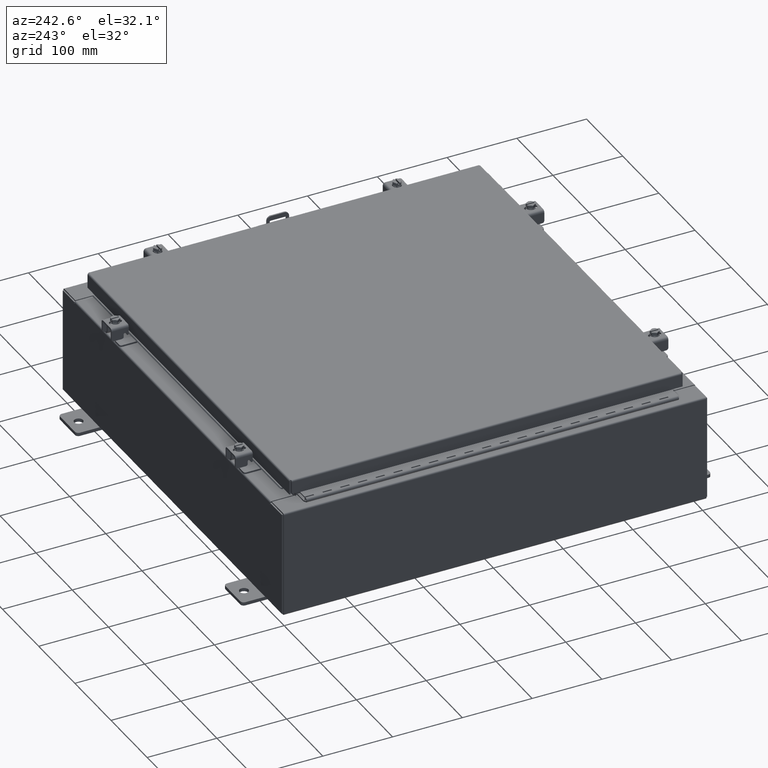
[diagram: clean part render]
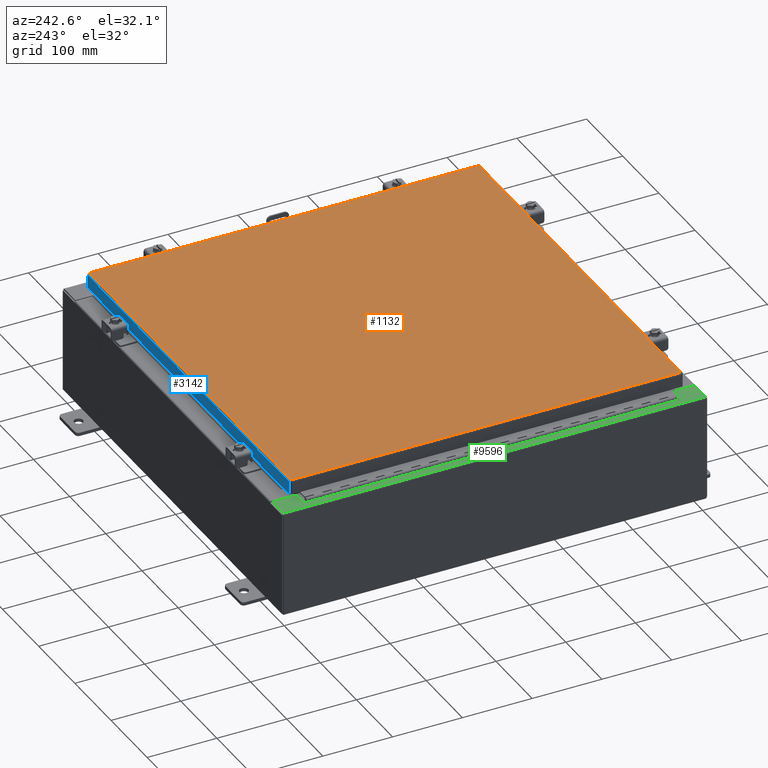
[diagram: same view with three faces highlighted in distinct colors, each labeled with its STEP entity id]
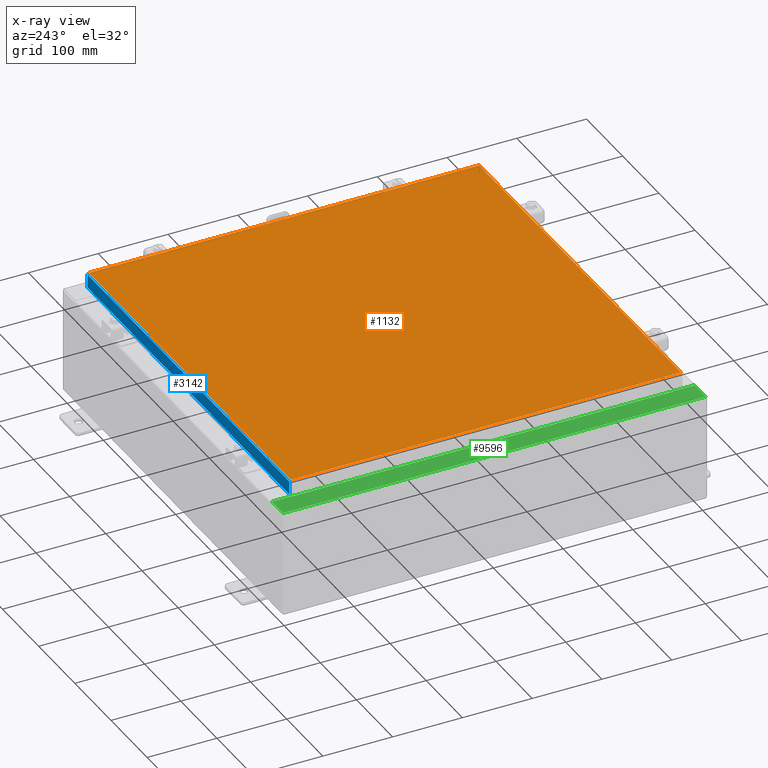
[diagram: x-ray of the same camera — body ghosted, the three highlighted faces saturated]
A machine part, auxiliary view with three faces highlighted in distinct colors.
The next image is the same camera in x-ray (body ghosted, the three faces saturated) — at least one of them is partly hidden behind the body in this view.
Their STEP definitions:

[orange] entity #1132 — the highlighted planar face has unit normal (0, 0, -1).
#3 = EDGE_CURVE ( 'NONE', #13325, #25488, #22379, .T. ) ;
#82 = ORIENTED_EDGE ( 'NONE', *, *, #29164, .T. ) ;
#209 = EDGE_LOOP ( 'NONE', ( #24850, #82, #24198, #31505 ) ) ;
#1132 = ADVANCED_FACE ( 'NONE', ( #6415 ), #1741, .F. ) ;
#1283 = EDGE_CURVE ( 'NONE', #8871, #13325, #8383, .T. ) ;
#1640 = DIRECTION ( 'NONE',  ( -1.000000000000000000, -0.0000000000000000000, -0.0000000000000000000 ) ) ;
#1741 = PLANE ( 'NONE',  #18687 ) ;
#3511 = CARTESIAN_POINT ( 'NONE',  ( 10.99029999999999800, 11.00629999999999600, 0.0000000000000000000 ) ) ;
#3762 = VECTOR ( 'NONE', #1640, 39.37007874015748100 ) ;
#4299 = DIRECTION ( 'NONE',  ( -1.000000000000000000, 0.0000000000000000000, -0.0000000000000000000 ) ) ;
#6415 = FACE_OUTER_BOUND ( 'NONE', #209, .T. ) ;
#7522 = VECTOR ( 'NONE', #13705, 39.37007874015748100 ) ;
#8383 = LINE ( 'NONE', #14921, #21101 ) ;
#8871 = VERTEX_POINT ( 'NONE', #24715 ) ;
#10486 = LINE ( 'NONE', #26974, #3762 ) ;
#11136 = CARTESIAN_POINT ( 'NONE',  ( 10.99029999999999600, -11.00630000000000100, 0.0000000000000000000 ) ) ;
#12912 = EDGE_CURVE ( 'NONE', #30241, #8871, #10486, .T. ) ;
#13325 = VERTEX_POINT ( 'NONE', #13341 ) ;
#13341 = CARTESIAN_POINT ( 'NONE',  ( -10.99030000000000000, -11.00630000000000100, 1.092739197465705300E-015 ) ) ;
#13705 = DIRECTION ( 'NONE',  ( 0.0000000000000000000, 1.000000000000000000, 0.0000000000000000000 ) ) ;
#14230 = LINE ( 'NONE', #11136, #7522 ) ;
#14270 = CARTESIAN_POINT ( 'NONE',  ( -10.99030000000000000, -11.00630000000000100, 1.092739197465705300E-015 ) ) ;
#14921 = CARTESIAN_POINT ( 'NONE',  ( -10.99030000000000500, 11.00629999999999600, -1.092739197465705300E-015 ) ) ;
#15589 = VECTOR ( 'NONE', #18727, 39.37007874015748100 ) ;
#18687 = AXIS2_PLACEMENT_3D ( 'NONE', #27073, #19507, #4299 ) ;
#18727 = DIRECTION ( 'NONE',  ( 1.000000000000000000, -0.0000000000000000000, -0.0000000000000000000 ) ) ;
#19507 = DIRECTION ( 'NONE',  ( 0.0000000000000000000, 0.0000000000000000000, -1.000000000000000000 ) ) ;
#21101 = VECTOR ( 'NONE', #27615, 39.37007874015748100 ) ;
#22379 = LINE ( 'NONE', #14270, #15589 ) ;
#24198 = ORIENTED_EDGE ( 'NONE', *, *, #12912, .T. ) ;
#24715 = CARTESIAN_POINT ( 'NONE',  ( -10.99030000000000500, 11.00629999999999600, -1.092739197465705300E-015 ) ) ;
#24850 = ORIENTED_EDGE ( 'NONE', *, *, #3, .T. ) ;
#25488 = VERTEX_POINT ( 'NONE', #30099 ) ;
#26974 = CARTESIAN_POINT ( 'NONE',  ( 10.99029999999999800, 11.00629999999999600, 0.0000000000000000000 ) ) ;
#27073 = CARTESIAN_POINT ( 'NONE',  ( 0.0000000000000000000, 0.0000000000000000000, 0.0000000000000000000 ) ) ;
#27615 = DIRECTION ( 'NONE',  ( 0.0000000000000000000, -1.000000000000000000, 0.0000000000000000000 ) ) ;
#29164 = EDGE_CURVE ( 'NONE', #25488, #30241, #14230, .T. ) ;
#30099 = CARTESIAN_POINT ( 'NONE',  ( 10.99029999999999600, -11.00630000000000100, 0.0000000000000000000 ) ) ;
#30241 = VERTEX_POINT ( 'NONE', #3511 ) ;
#31505 = ORIENTED_EDGE ( 'NONE', *, *, #1283, .T. ) ;

[blue] entity #3142 — the highlighted planar face has unit normal (0, -1, -0).
#513 = ORIENTED_EDGE ( 'NONE', *, *, #9554, .T. ) ;
#994 = LINE ( 'NONE', #1654, #11284 ) ;
#1654 = CARTESIAN_POINT ( 'NONE',  ( -11.07800000000000300, 11.09399999999999800, -0.08770000000000026400 ) ) ;
#3142 = ADVANCED_FACE ( 'NONE', ( #18585 ), #31229, .F. ) ;
#3956 = VECTOR ( 'NONE', #10351, 39.37007874015748100 ) ;
#4139 = EDGE_LOOP ( 'NONE', ( #26597, #513, #8035, #20964, #6029, #32745 ) ) ;
#4781 = VERTEX_POINT ( 'NONE', #25783 ) ;
#4957 = CARTESIAN_POINT ( 'NONE',  ( -10.23915786437626700, 11.09399999999999200, -0.8500000000000043100 ) ) ;
#5160 = CARTESIAN_POINT ( 'NONE',  ( -11.07800000000000300, 11.09399999999999900, -0.8500000000000020900 ) ) ;
#5852 = CARTESIAN_POINT ( 'NONE',  ( -11.07800000000000300, 11.09399999999999900, -0.8500000000000020900 ) ) ;
#5898 = CARTESIAN_POINT ( 'NONE',  ( 0.0000000000000000000, 11.09399999999999800, 3.168943672650545400E-014 ) ) ;
#6029 = ORIENTED_EDGE ( 'NONE', *, *, #17007, .F. ) ;
#6266 = LINE ( 'NONE', #7565, #19792 ) ;
#6642 = VERTEX_POINT ( 'NONE', #16901 ) ;
#7238 = LINE ( 'NONE', #24849, #25114 ) ;
#7565 = CARTESIAN_POINT ( 'NONE',  ( 10.98915786437626500, 11.09399999999999800, 3.168943672650545400E-014 ) ) ;
#8035 = ORIENTED_EDGE ( 'NONE', *, *, #25713, .F. ) ;
#9352 = VECTOR ( 'NONE', #15788, 39.37007874015748100 ) ;
#9554 = EDGE_CURVE ( 'NONE', #25799, #29908, #6266, .T. ) ;
#10074 = DIRECTION ( 'NONE',  ( 0.0000000000000000000, 2.818880942772350300E-015, -1.000000000000000000 ) ) ;
#10351 = DIRECTION ( 'NONE',  ( 1.000000000000000000, -4.379057701015054300E-047, 1.233005954894504400E-016 ) ) ;
#10969 = DIRECTION ( 'NONE',  ( 0.0000000000000000000, 2.818880942772350300E-015, -1.000000000000000000 ) ) ;
#11014 = EDGE_CURVE ( 'NONE', #25799, #6642, #994, .T. ) ;
#11284 = VECTOR ( 'NONE', #21859, 39.37007874015748100 ) ;
#12161 = DIRECTION ( 'NONE',  ( -0.0000000000000000000, 2.818880942772350300E-015, -1.000000000000000000 ) ) ;
#12793 = VERTEX_POINT ( 'NONE', #31649 ) ;
#13226 = CARTESIAN_POINT ( 'NONE',  ( -10.23915786437626500, 11.09399999999999200, -0.8500000000000043100 ) ) ;
#13599 = AXIS2_PLACEMENT_3D ( 'NONE', #5898, #26229, #10969 ) ;
#14718 = CARTESIAN_POINT ( 'NONE',  ( 10.98915786437626500, 11.09399999999999900, -0.8499999999999999800 ) ) ;
#15788 = DIRECTION ( 'NONE',  ( 1.000000000000000000, -0.0000000000000000000, -0.0000000000000000000 ) ) ;
#16901 = CARTESIAN_POINT ( 'NONE',  ( -10.98915786437626900, 11.09399999999999800, -0.08770000000000026400 ) ) ;
#16909 = LINE ( 'NONE', #13226, #9352 ) ;
#17007 = EDGE_CURVE ( 'NONE', #12793, #27630, #23377, .T. ) ;
#18585 = FACE_OUTER_BOUND ( 'NONE', #4139, .T. ) ;
#19432 = EDGE_CURVE ( 'NONE', #27630, #4781, #16909, .T. ) ;
#19792 = VECTOR ( 'NONE', #10074, 39.37007874015748100 ) ;
#20384 = DIRECTION ( 'NONE',  ( 1.000000000000000000, -4.379057701015054300E-047, 1.233005954894504400E-016 ) ) ;
#20964 = ORIENTED_EDGE ( 'NONE', *, *, #19432, .F. ) ;
#21859 = DIRECTION ( 'NONE',  ( -1.000000000000000000, -3.475696988576942200E-031, -9.473942235605600700E-046 ) ) ;
#23377 = LINE ( 'NONE', #5160, #30175 ) ;
#24049 = CARTESIAN_POINT ( 'NONE',  ( 10.98915786437626500, 11.09399999999999800, -0.08770000000000026400 ) ) ;
#24849 = CARTESIAN_POINT ( 'NONE',  ( -10.98915786437626900, 11.09399999999999800, -0.07470000000000015500 ) ) ;
#25114 = VECTOR ( 'NONE', #12161, 39.37007874015748100 ) ;
#25713 = EDGE_CURVE ( 'NONE', #4781, #29908, #30999, .T. ) ;
#25783 = CARTESIAN_POINT ( 'NONE',  ( 10.23915786437625100, 11.09399999999999200, -0.8500000000000043100 ) ) ;
#25799 = VERTEX_POINT ( 'NONE', #24049 ) ;
#26229 = DIRECTION ( 'NONE',  ( 3.475696988576941300E-031, -1.000000000000000000, -2.818880942772350300E-015 ) ) ;
#26597 = ORIENTED_EDGE ( 'NONE', *, *, #11014, .F. ) ;
#27494 = EDGE_CURVE ( 'NONE', #6642, #12793, #7238, .T. ) ;
#27630 = VERTEX_POINT ( 'NONE', #4957 ) ;
#29908 = VERTEX_POINT ( 'NONE', #14718 ) ;
#30175 = VECTOR ( 'NONE', #20384, 39.37007874015748100 ) ;
#30999 = LINE ( 'NONE', #5852, #3956 ) ;
#31229 = PLANE ( 'NONE',  #13599 ) ;
#31649 = CARTESIAN_POINT ( 'NONE',  ( -10.98915786437626900, 11.09399999999999900, -0.8500000000000020900 ) ) ;
#32745 = ORIENTED_EDGE ( 'NONE', *, *, #27494, .F. ) ;

[green] entity #9596 — the highlighted planar face has unit normal (0, 0, -1).
#135 = VERTEX_POINT ( 'NONE', #22404 ) ;
#670 = LINE ( 'NONE', #32207, #13335 ) ;
#1035 = LINE ( 'NONE', #8992, #27267 ) ;
#1751 = DIRECTION ( 'NONE',  ( -1.000000000000000000, -4.084933421431495300E-032, -7.132762385546384700E-015 ) ) ;
#1764 = ORIENTED_EDGE ( 'NONE', *, *, #20546, .F. ) ;
#2256 = VECTOR ( 'NONE', #16372, 39.37007874015748100 ) ;
#2894 = EDGE_CURVE ( 'NONE', #27614, #26860, #24982, .T. ) ;
#3019 = LINE ( 'NONE', #24929, #29276 ) ;
#3583 = CARTESIAN_POINT ( 'NONE',  ( -10.75005000000002300, 10.61242499999999800, 5.925300000000008000 ) ) ;
#3856 = CARTESIAN_POINT ( 'NONE',  ( -10.75005000000002300, 10.59374999999999800, 5.925300000000008000 ) ) ;
#3878 = EDGE_CURVE ( 'NONE', #14612, #32743, #8978, .T. ) ;
#3987 = CARTESIAN_POINT ( 'NONE',  ( -10.71270000000002300, -10.59374999999999800, 5.925300000000008000 ) ) ;
#4102 = DIRECTION ( 'NONE',  ( -1.000000000000000000, 0.0000000000000000000, 0.0000000000000000000 ) ) ;
#4257 = VECTOR ( 'NONE', #25325, 39.37007874015748100 ) ;
#4511 = ORIENTED_EDGE ( 'NONE', *, *, #3878, .T. ) ;
#4668 = FACE_OUTER_BOUND ( 'NONE', #27833, .T. ) ;
#5620 = AXIS2_PLACEMENT_3D ( 'NONE', #3583, #21359, #6157 ) ;
#6157 = DIRECTION ( 'NONE',  ( 1.000000000000000000, 0.0000000000000000000, 0.0000000000000000000 ) ) ;
#6615 = EDGE_CURVE ( 'NONE', #135, #14612, #12943, .T. ) ;
#7810 = CARTESIAN_POINT ( 'NONE',  ( -10.75005000000002300, 10.59374999999999800, 5.925300000000008000 ) ) ;
#8978 = LINE ( 'NONE', #21494, #2256 ) ;
#8992 = CARTESIAN_POINT ( 'NONE',  ( -10.71270000000002300, 10.59374999999999800, 5.925300000000008000 ) ) ;
#9127 = CARTESIAN_POINT ( 'NONE',  ( -4.252457061925311200E-014, -11.92530000000000000, 5.925300000000084400 ) ) ;
#9596 = ADVANCED_FACE ( 'NONE', ( #4668 ), #28005, .F. ) ;
#9639 = CARTESIAN_POINT ( 'NONE',  ( -10.75005000000002300, -10.63109999999999600, 5.925300000000008000 ) ) ;
#9933 = CARTESIAN_POINT ( 'NONE',  ( -10.71270000000002300, -10.59374999999999800, 5.925300000000008000 ) ) ;
#10291 = DIRECTION ( 'NONE',  ( -1.000000000000000000, 0.0000000000000000000, -7.132762385546384700E-015 ) ) ;
#10416 = EDGE_CURVE ( 'NONE', #12703, #19208, #1035, .T. ) ;
#10449 = CARTESIAN_POINT ( 'NONE',  ( -10.69970000000002300, -10.63109999999999800, 5.925300000000008000 ) ) ;
#10585 = ORIENTED_EDGE ( 'NONE', *, *, #31053, .T. ) ;
#10963 = LINE ( 'NONE', #27775, #4257 ) ;
#11009 = VECTOR ( 'NONE', #4102, 39.37007874015748100 ) ;
#11422 = ORIENTED_EDGE ( 'NONE', *, *, #6615, .T. ) ;
#11428 = DIRECTION ( 'NONE',  ( 9.163200904511462000E-017, 1.000000000000000000, 6.535893474290396800E-031 ) ) ;
#11500 = CARTESIAN_POINT ( 'NONE',  ( -10.69970000000002300, -11.92530000000000000, 5.925300000000008000 ) ) ;
#12132 = VECTOR ( 'NONE', #15200, 39.37007874015748100 ) ;
#12661 = CARTESIAN_POINT ( 'NONE',  ( -10.69970000000002300, 10.63109999999999600, 5.925300000000008000 ) ) ;
#12703 = VERTEX_POINT ( 'NONE', #31199 ) ;
#12822 = EDGE_CURVE ( 'NONE', #24330, #12703, #25654, .T. ) ;
#12943 = LINE ( 'NONE', #9127, #13736 ) ;
#13326 = ORIENTED_EDGE ( 'NONE', *, *, #2894, .F. ) ;
#13335 = VECTOR ( 'NONE', #1751, 39.37007874015748100 ) ;
#13736 = VECTOR ( 'NONE', #24356, 39.37007874015748100 ) ;
#14426 = DIRECTION ( 'NONE',  ( -7.132762385546384700E-015, -0.0000000000000000000, 1.000000000000000000 ) ) ;
#14612 = VERTEX_POINT ( 'NONE', #11500 ) ;
#14616 = ORIENTED_EDGE ( 'NONE', *, *, #16718, .F. ) ;
#14776 = VERTEX_POINT ( 'NONE', #17282 ) ;
#15200 = DIRECTION ( 'NONE',  ( -1.000000000000000000, 0.0000000000000000000, 0.0000000000000000000 ) ) ;
#16372 = DIRECTION ( 'NONE',  ( -3.120540565805877600E-031, 1.000000000000000000, -2.225807437035179500E-045 ) ) ;
#16506 = DIRECTION ( 'NONE',  ( 1.000000000000000000, 0.0000000000000000000, 0.0000000000000000000 ) ) ;
#16718 = EDGE_CURVE ( 'NONE', #32585, #24330, #25401, .T. ) ;
#17282 = CARTESIAN_POINT ( 'NONE',  ( -10.69970000000002300, 11.92529999999999800, 5.925300000000008000 ) ) ;
#17487 = CARTESIAN_POINT ( 'NONE',  ( -10.75005000000002300, 10.63109999999999600, 5.925300000000008000 ) ) ;
#17501 = AXIS2_PLACEMENT_3D ( 'NONE', #17857, #25556, #10291 ) ;
#17648 = AXIS2_PLACEMENT_3D ( 'NONE', #29706, #14426, #32259 ) ;
#17679 = VERTEX_POINT ( 'NONE', #20565 ) ;
#17857 = CARTESIAN_POINT ( 'NONE',  ( -4.252457061925311200E-014, 0.0000000000000000000, 5.925300000000084400 ) ) ;
#18075 = EDGE_CURVE ( 'NONE', #14776, #17679, #670, .T. ) ;
#18172 = ORIENTED_EDGE ( 'NONE', *, *, #12822, .F. ) ;
#18368 = ORIENTED_EDGE ( 'NONE', *, *, #10416, .F. ) ;
#18680 = VECTOR ( 'NONE', #11428, 39.37007874015748100 ) ;
#18878 = VECTOR ( 'NONE', #16506, 39.37007874015748100 ) ;
#19208 = VERTEX_POINT ( 'NONE', #9933 ) ;
#20407 = ORIENTED_EDGE ( 'NONE', *, *, #21208, .F. ) ;
#20546 = EDGE_CURVE ( 'NONE', #26860, #32743, #10963, .T. ) ;
#20565 = CARTESIAN_POINT ( 'NONE',  ( -11.91230000000002500, 11.92529999999999800, 5.925299999999999100 ) ) ;
#20944 = VERTEX_POINT ( 'NONE', #26850 ) ;
#21208 = EDGE_CURVE ( 'NONE', #20944, #32585, #25675, .T. ) ;
#21359 = DIRECTION ( 'NONE',  ( -7.132762385546384700E-015, -0.0000000000000000000, 1.000000000000000000 ) ) ;
#21494 = CARTESIAN_POINT ( 'NONE',  ( -10.69970000000002300, 0.0000000000000000000, 5.925300000000008000 ) ) ;
#22404 = CARTESIAN_POINT ( 'NONE',  ( -11.91230000000002500, -11.92530000000000000, 5.925299999999999100 ) ) ;
#22469 = DIRECTION ( 'NONE',  ( -3.120540565805877600E-031, 1.000000000000000000, -2.225807437035179500E-045 ) ) ;
#24119 = CARTESIAN_POINT ( 'NONE',  ( -11.91230000000002300, 11.92529999999999800, 5.925299999999999100 ) ) ;
#24221 = DIRECTION ( 'NONE',  ( -0.0000000000000000000, -1.000000000000000000, -0.0000000000000000000 ) ) ;
#24330 = VERTEX_POINT ( 'NONE', #7810 ) ;
#24356 = DIRECTION ( 'NONE',  ( 1.000000000000000000, -4.379057701015053300E-047, 7.132762385546384700E-015 ) ) ;
#24570 = LINE ( 'NONE', #3987, #11009 ) ;
#24668 = EDGE_CURVE ( 'NONE', #135, #17679, #32228, .T. ) ;
#24929 = CARTESIAN_POINT ( 'NONE',  ( -10.69970000000002300, 0.0000000000000000000, 5.925300000000008000 ) ) ;
#24982 = CIRCLE ( 'NONE', #17648, 0.01867499999999949400 ) ;
#25325 = DIRECTION ( 'NONE',  ( 1.000000000000000000, 0.0000000000000000000, 0.0000000000000000000 ) ) ;
#25401 = CIRCLE ( 'NONE', #5620, 0.01867499999999949400 ) ;
#25556 = DIRECTION ( 'NONE',  ( 7.132762385546384700E-015, 0.0000000000000000000, -1.000000000000000000 ) ) ;
#25654 = LINE ( 'NONE', #3856, #18878 ) ;
#25675 = LINE ( 'NONE', #12661, #12132 ) ;
#26850 = CARTESIAN_POINT ( 'NONE',  ( -10.69970000000002300, 10.63109999999999600, 5.925300000000008000 ) ) ;
#26860 = VERTEX_POINT ( 'NONE', #9639 ) ;
#27267 = VECTOR ( 'NONE', #24221, 39.37007874015748100 ) ;
#27614 = VERTEX_POINT ( 'NONE', #32961 ) ;
#27775 = CARTESIAN_POINT ( 'NONE',  ( -10.75005000000002300, -10.63109999999999600, 5.925300000000008000 ) ) ;
#27833 = EDGE_LOOP ( 'NONE', ( #20407, #10585, #29627, #31435, #11422, #4511, #1764, #13326, #29859, #18368, #18172, #14616 ) ) ;
#28005 = PLANE ( 'NONE',  #17501 ) ;
#29276 = VECTOR ( 'NONE', #22469, 39.37007874015748100 ) ;
#29627 = ORIENTED_EDGE ( 'NONE', *, *, #18075, .T. ) ;
#29706 = CARTESIAN_POINT ( 'NONE',  ( -10.75005000000002300, -10.61242499999999800, 5.925300000000008000 ) ) ;
#29793 = EDGE_CURVE ( 'NONE', #19208, #27614, #24570, .T. ) ;
#29859 = ORIENTED_EDGE ( 'NONE', *, *, #29793, .F. ) ;
#31053 = EDGE_CURVE ( 'NONE', #20944, #14776, #3019, .T. ) ;
#31199 = CARTESIAN_POINT ( 'NONE',  ( -10.71270000000002300, 10.59374999999999800, 5.925300000000008000 ) ) ;
#31435 = ORIENTED_EDGE ( 'NONE', *, *, #24668, .F. ) ;
#32207 = CARTESIAN_POINT ( 'NONE',  ( -4.252457061925311200E-014, 11.92529999999999800, 5.925300000000084400 ) ) ;
#32228 = LINE ( 'NONE', #24119, #18680 ) ;
#32259 = DIRECTION ( 'NONE',  ( 1.000000000000000000, 0.0000000000000000000, 0.0000000000000000000 ) ) ;
#32585 = VERTEX_POINT ( 'NONE', #17487 ) ;
#32743 = VERTEX_POINT ( 'NONE', #10449 ) ;
#32961 = CARTESIAN_POINT ( 'NONE',  ( -10.75005000000002300, -10.59374999999999800, 5.925300000000008000 ) ) ;